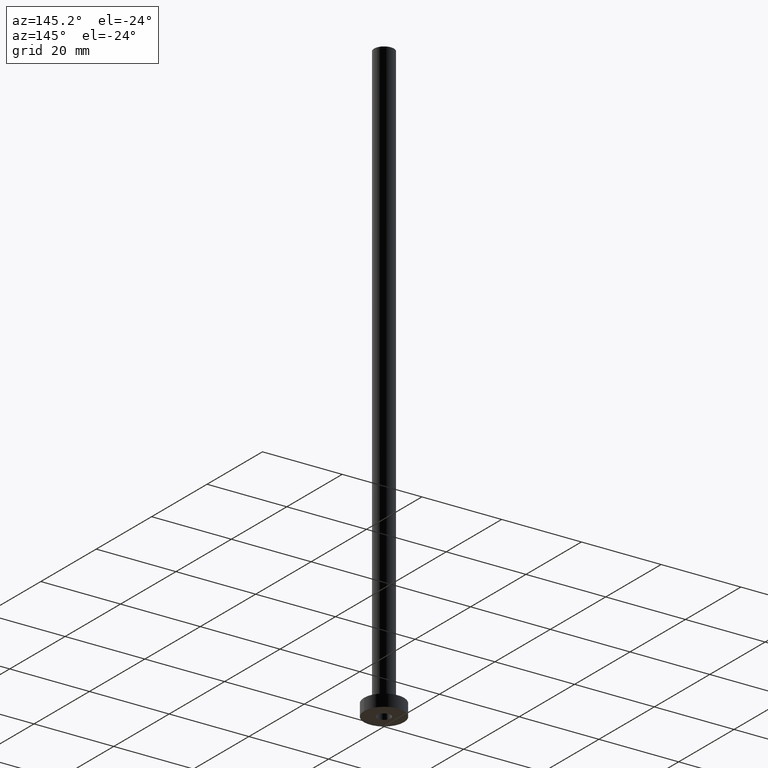
[diagram: clean part render]
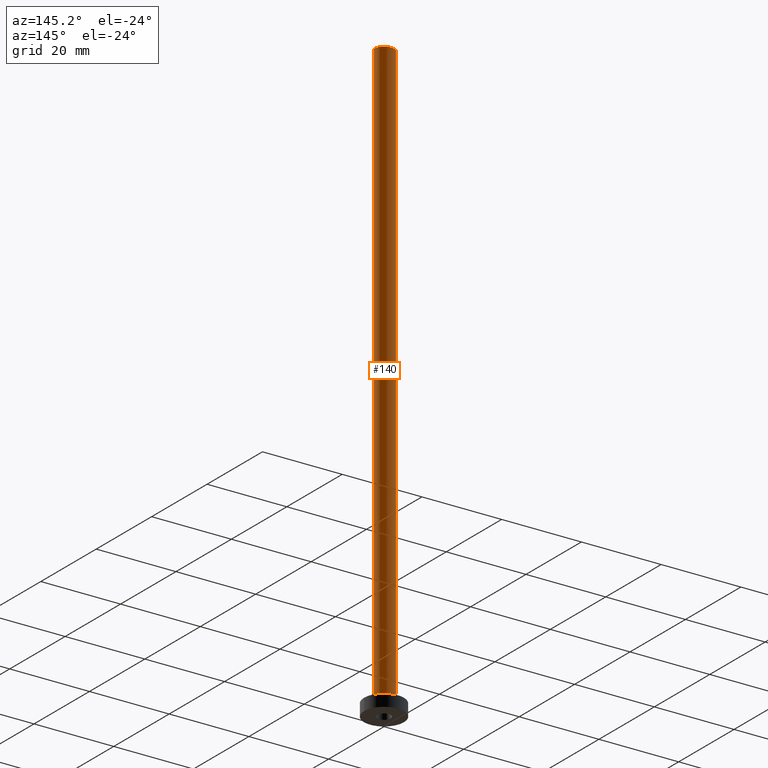
[diagram: same view with one face highlighted and labeled with its STEP entity id]
A machine part, auxiliary view. The second image highlights one B-rep face of the part: STEP entity #140.
In plain terms, the highlighted cylindrical surface (edge-blend (fillet) strip) has radius 2.5 mm, axis along (-0, -0, -1).
Its self-contained STEP definition (entity closure, byte-faithful):
#9 = CARTESIAN_POINT ( 'NONE',  ( 2.500000000000000000, 3.061616997868383141E-16, 3.299999999999997158 ) ) ;
#26 = AXIS2_PLACEMENT_3D ( 'NONE', #328, #425, #112 ) ;
#38 = VERTEX_POINT ( 'NONE', #246 ) ;
#41 = ORIENTED_EDGE ( 'NONE', *, *, #42, .T. ) ;
#42 = EDGE_CURVE ( 'NONE', #159, #38, #312, .T. ) ;
#46 = LINE ( 'NONE', #66, #285 ) ;
#50 = EDGE_CURVE ( 'NONE', #461, #38, #46, .T. ) ;
#53 = EDGE_CURVE ( 'NONE', #268, #159, #451, .T. ) ;
#61 = CIRCLE ( 'NONE', #424, 2.500000000000000000 ) ;
#66 = CARTESIAN_POINT ( 'NONE',  ( -2.500000000000000000, 0.000000000000000000, 150.0000000000000000 ) ) ;
#72 = VECTOR ( 'NONE', #130, 1000.000000000000000 ) ;
#89 = CARTESIAN_POINT ( 'NONE',  ( -2.500000000000000000, 0.000000000000000000, 150.0000000000000000 ) ) ;
#112 = DIRECTION ( 'NONE',  ( -1.000000000000000000, 0.000000000000000000, 0.000000000000000000 ) ) ;
#130 = DIRECTION ( 'NONE',  ( -0.000000000000000000, -0.000000000000000000, -1.000000000000000000 ) ) ;
#140 = ADVANCED_FACE ( 'NONE', ( #358 ), #144, .T. ) ;
#144 = CYLINDRICAL_SURFACE ( 'NONE', #26, 2.500000000000000000 ) ;
#159 = VERTEX_POINT ( 'NONE', #9 ) ;
#164 = AXIS2_PLACEMENT_3D ( 'NONE', #387, #377, #211 ) ;
#165 = EDGE_LOOP ( 'NONE', ( #432, #276, #41, #302 ) ) ;
#170 = DIRECTION ( 'NONE',  ( -0.000000000000000000, -0.000000000000000000, -1.000000000000000000 ) ) ;
#211 = DIRECTION ( 'NONE',  ( 1.000000000000000000, 0.000000000000000000, 0.000000000000000000 ) ) ;
#246 = CARTESIAN_POINT ( 'NONE',  ( -2.500000000000000000, 0.000000000000000000, 3.299999999999997158 ) ) ;
#247 = EDGE_CURVE ( 'NONE', #268, #461, #61, .T. ) ;
#268 = VERTEX_POINT ( 'NONE', #392 ) ;
#276 = ORIENTED_EDGE ( 'NONE', *, *, #53, .T. ) ;
#285 = VECTOR ( 'NONE', #170, 1000.000000000000000 ) ;
#294 = CARTESIAN_POINT ( 'NONE',  ( 0.000000000000000000, 0.000000000000000000, 150.0000000000000000 ) ) ;
#302 = ORIENTED_EDGE ( 'NONE', *, *, #50, .F. ) ;
#312 = CIRCLE ( 'NONE', #164, 2.500000000000000000 ) ;
#328 = CARTESIAN_POINT ( 'NONE',  ( 0.000000000000000000, 0.000000000000000000, 150.0000000000000000 ) ) ;
#358 = FACE_OUTER_BOUND ( 'NONE', #165, .T. ) ;
#373 = DIRECTION ( 'NONE',  ( 1.000000000000000000, 0.000000000000000000, 0.000000000000000000 ) ) ;
#377 = DIRECTION ( 'NONE',  ( 0.000000000000000000, 0.000000000000000000, 1.000000000000000000 ) ) ;
#387 = CARTESIAN_POINT ( 'NONE',  ( 0.000000000000000000, 0.000000000000000000, 3.299999999999997158 ) ) ;
#392 = CARTESIAN_POINT ( 'NONE',  ( 2.500000000000000000, 3.061616997868383141E-16, 150.0000000000000000 ) ) ;
#424 = AXIS2_PLACEMENT_3D ( 'NONE', #294, #435, #373 ) ;
#425 = DIRECTION ( 'NONE',  ( -0.000000000000000000, -0.000000000000000000, -1.000000000000000000 ) ) ;
#432 = ORIENTED_EDGE ( 'NONE', *, *, #247, .F. ) ;
#435 = DIRECTION ( 'NONE',  ( 0.000000000000000000, 0.000000000000000000, 1.000000000000000000 ) ) ;
#451 = LINE ( 'NONE', #456, #72 ) ;
#456 = CARTESIAN_POINT ( 'NONE',  ( 2.500000000000000000, 3.061616997868383141E-16, 150.0000000000000000 ) ) ;
#461 = VERTEX_POINT ( 'NONE', #89 ) ;